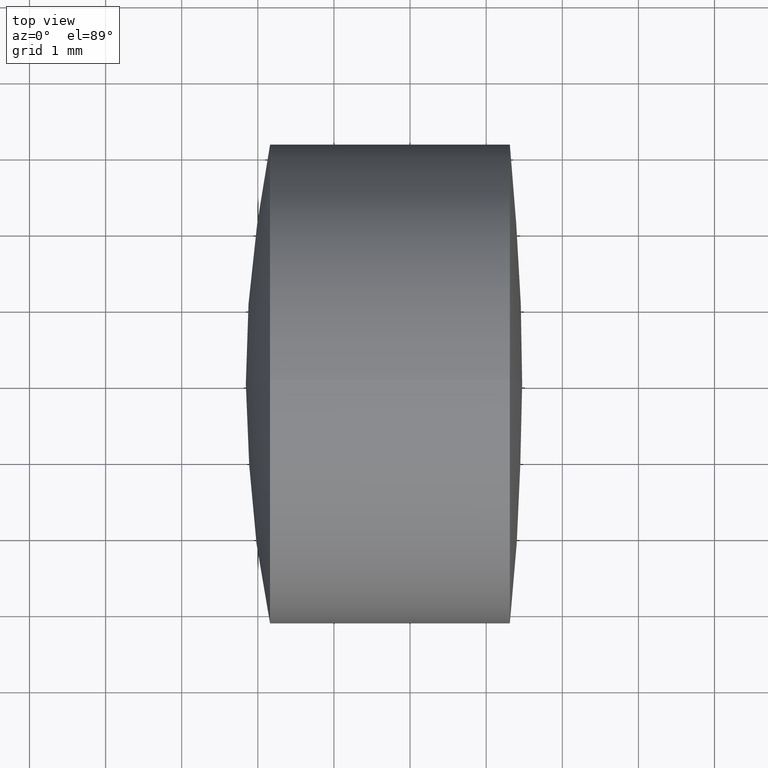
[diagram: clean part render]
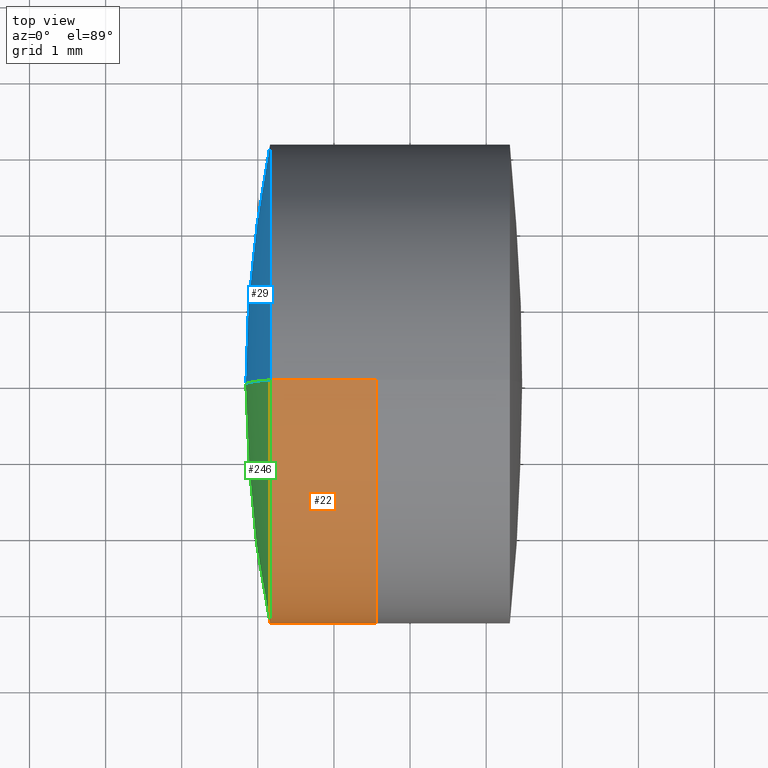
[diagram: same view with three faces highlighted in distinct colors, each labeled with its STEP entity id]
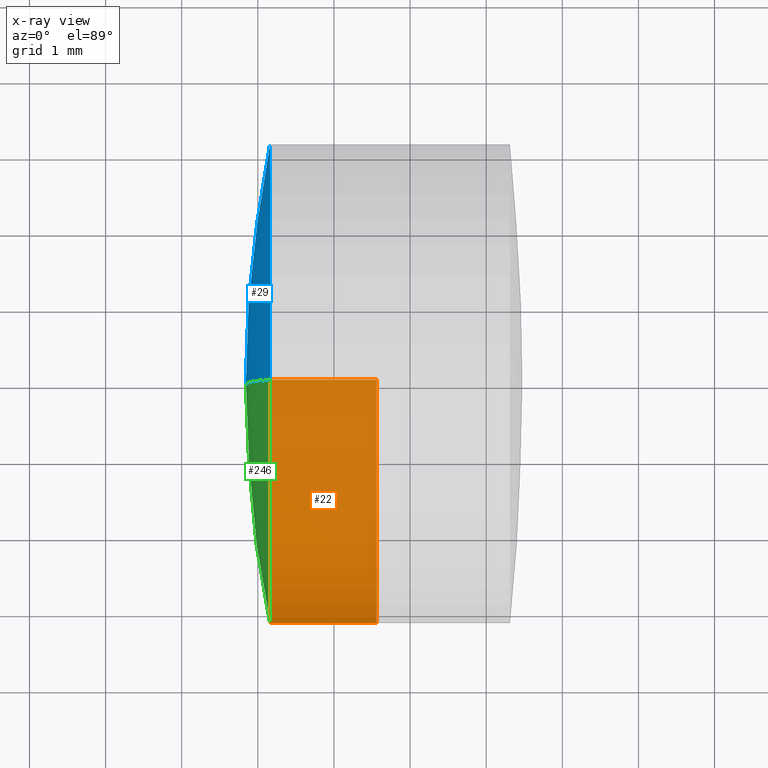
[diagram: x-ray of the same camera — body ghosted, the three highlighted faces saturated]
A machine part, top view with three faces highlighted in distinct colors.
The next image is the same camera in x-ray (body ghosted, the three faces saturated) — at least one of them is partly hidden behind the body in this view.
Their STEP definitions:

[orange] entity #22 — the highlighted cylindrical surface (partial cylindrical patch) has radius 3.15 mm, axis along (-1, -0, -0).
#8 = DIRECTION ( 'NONE',  ( -1.000000000000000000, -0.0000000000000000000, -0.0000000000000000000 ) ) ;
#12 = CARTESIAN_POINT ( 'NONE',  ( -0.8160621761658039000, 0.0000000000000000000, 0.0000000000000000000 ) ) ;
#22 = ADVANCED_FACE ( 'NONE', ( #292 ), #278, .T. ) ;
#48 = CIRCLE ( 'NONE', #173, 3.149999999999999900 ) ;
#51 = EDGE_LOOP ( 'NONE', ( #235, #281, #259, #336 ) ) ;
#60 = AXIS2_PLACEMENT_3D ( 'NONE', #12, #151, #101 ) ;
#70 = DIRECTION ( 'NONE',  ( 0.0000000000000000000, 0.0000000000000000000, 1.000000000000000000 ) ) ;
#76 = EDGE_CURVE ( 'NONE', #171, #195, #83, .T. ) ;
#83 = LINE ( 'NONE', #263, #179 ) ;
#93 = CIRCLE ( 'NONE', #188, 3.149999999999999900 ) ;
#99 = CARTESIAN_POINT ( 'NONE',  ( 8.563134654860508700, 0.0000000000000000000, 0.0000000000000000000 ) ) ;
#101 = DIRECTION ( 'NONE',  ( 0.0000000000000000000, 0.0000000000000000000, 1.000000000000000000 ) ) ;
#109 = CARTESIAN_POINT ( 'NONE',  ( 7.160622845459306200, -3.857637417314162200E-016, 3.149999999999999500 ) ) ;
#123 = VECTOR ( 'NONE', #129, 1000.000000000000000 ) ;
#125 = LINE ( 'NONE', #258, #123 ) ;
#128 = DIRECTION ( 'NONE',  ( -1.000000000000000000, -0.0000000000000000000, -0.0000000000000000000 ) ) ;
#129 = DIRECTION ( 'NONE',  ( -1.000000000000000000, -0.0000000000000000000, -0.0000000000000000000 ) ) ;
#132 = EDGE_CURVE ( 'NONE', #200, #267, #125, .T. ) ;
#151 = DIRECTION ( 'NONE',  ( -1.000000000000000000, -0.0000000000000000000, -0.0000000000000000000 ) ) ;
#171 = VERTEX_POINT ( 'NONE', #199 ) ;
#173 = AXIS2_PLACEMENT_3D ( 'NONE', #338, #322, #70 ) ;
#179 = VECTOR ( 'NONE', #8, 1000.000000000000000 ) ;
#188 = AXIS2_PLACEMENT_3D ( 'NONE', #99, #128, #312 ) ;
#195 = VERTEX_POINT ( 'NONE', #109 ) ;
#199 = CARTESIAN_POINT ( 'NONE',  ( 8.563134654860508700, 0.0000000000000000000, 3.149999999999999900 ) ) ;
#200 = VERTEX_POINT ( 'NONE', #257 ) ;
#235 = ORIENTED_EDGE ( 'NONE', *, *, #132, .F. ) ;
#257 = CARTESIAN_POINT ( 'NONE',  ( 8.563134654860508700, 3.857637417314162700E-016, -3.149999999999999900 ) ) ;
#258 = CARTESIAN_POINT ( 'NONE',  ( -0.8160621761658039000, 3.857637417314162700E-016, -3.149999999999999900 ) ) ;
#259 = ORIENTED_EDGE ( 'NONE', *, *, #76, .T. ) ;
#263 = CARTESIAN_POINT ( 'NONE',  ( -0.8160621761658039000, 0.0000000000000000000, 3.149999999999999900 ) ) ;
#267 = VERTEX_POINT ( 'NONE', #317 ) ;
#278 = CYLINDRICAL_SURFACE ( 'NONE', #60, 3.149999999999999900 ) ;
#281 = ORIENTED_EDGE ( 'NONE', *, *, #341, .T. ) ;
#292 = FACE_OUTER_BOUND ( 'NONE', #51, .T. ) ;
#312 = DIRECTION ( 'NONE',  ( 0.0000000000000000000, 0.0000000000000000000, 1.000000000000000000 ) ) ;
#317 = CARTESIAN_POINT ( 'NONE',  ( 7.160622845459306200, 0.0000000000000000000, -3.149999999999999500 ) ) ;
#318 = EDGE_CURVE ( 'NONE', #267, #195, #48, .T. ) ;
#322 = DIRECTION ( 'NONE',  ( -1.000000000000000000, -0.0000000000000000000, -0.0000000000000000000 ) ) ;
#336 = ORIENTED_EDGE ( 'NONE', *, *, #318, .F. ) ;
#338 = CARTESIAN_POINT ( 'NONE',  ( 7.160622845459305300, 0.0000000000000000000, 0.0000000000000000000 ) ) ;
#341 = EDGE_CURVE ( 'NONE', #200, #171, #93, .T. ) ;

[blue] entity #29 — the highlighted spherical surface has radius 15.759 mm.
#21 = DIRECTION ( 'NONE',  ( 0.0000000000000000000, 1.000000000000000000, -0.0000000000000000000 ) ) ;
#29 = ADVANCED_FACE ( 'NONE', ( #206 ), #49, .T. ) ;
#30 = ORIENTED_EDGE ( 'NONE', *, *, #342, .T. ) ;
#44 = EDGE_CURVE ( 'NONE', #195, #117, #222, .T. ) ;
#45 = ORIENTED_EDGE ( 'NONE', *, *, #50, .T. ) ;
#49 = SPHERICAL_SURFACE ( 'NONE', #208, 15.75900000000000200 ) ;
#50 = EDGE_CURVE ( 'NONE', #195, #267, #55, .T. ) ;
#55 = CIRCLE ( 'NONE', #68, 3.149999999999999900 ) ;
#68 = AXIS2_PLACEMENT_3D ( 'NONE', #327, #196, #230 ) ;
#74 = AXIS2_PLACEMENT_3D ( 'NONE', #279, #280, #256 ) ;
#82 = ORIENTED_EDGE ( 'NONE', *, *, #44, .F. ) ;
#90 = CARTESIAN_POINT ( 'NONE',  ( 6.842593702241595500, 0.0000000000000000000, -9.328835461776508400E-016 ) ) ;
#109 = CARTESIAN_POINT ( 'NONE',  ( 7.160622845459306200, -3.857637417314162200E-016, 3.149999999999999500 ) ) ;
#117 = VERTEX_POINT ( 'NONE', #90 ) ;
#185 = AXIS2_PLACEMENT_3D ( 'NONE', #314, #21, #264 ) ;
#195 = VERTEX_POINT ( 'NONE', #109 ) ;
#196 = DIRECTION ( 'NONE',  ( -1.000000000000000000, -0.0000000000000000000, -0.0000000000000000000 ) ) ;
#206 = FACE_OUTER_BOUND ( 'NONE', #221, .T. ) ;
#208 = AXIS2_PLACEMENT_3D ( 'NONE', #286, #276, #332 ) ;
#221 = EDGE_LOOP ( 'NONE', ( #82, #45, #30 ) ) ;
#222 = CIRCLE ( 'NONE', #74, 15.75900000000000200 ) ;
#230 = DIRECTION ( 'NONE',  ( 0.0000000000000000000, 0.0000000000000000000, 1.000000000000000000 ) ) ;
#256 = DIRECTION ( 'NONE',  ( 0.0000000000000000000, 1.224646799147353200E-016, -1.000000000000000000 ) ) ;
#260 = CIRCLE ( 'NONE', #185, 15.75900000000000200 ) ;
#264 = DIRECTION ( 'NONE',  ( 0.0000000000000000000, 0.0000000000000000000, 1.000000000000000000 ) ) ;
#267 = VERTEX_POINT ( 'NONE', #317 ) ;
#276 = DIRECTION ( 'NONE',  ( -0.0000000000000000000, -1.000000000000000000, -0.0000000000000000000 ) ) ;
#279 = CARTESIAN_POINT ( 'NONE',  ( 22.60159370224159800, 0.0000000000000000000, 3.207689921050636000E-017 ) ) ;
#280 = DIRECTION ( 'NONE',  ( 0.0000000000000000000, -1.000000000000000000, -1.224646799147353200E-016 ) ) ;
#286 = CARTESIAN_POINT ( 'NONE',  ( 22.60159370224159800, 0.0000000000000000000, 3.207689921050636000E-017 ) ) ;
#314 = CARTESIAN_POINT ( 'NONE',  ( 22.60159370224159800, 0.0000000000000000000, 3.207689921050636000E-017 ) ) ;
#317 = CARTESIAN_POINT ( 'NONE',  ( 7.160622845459306200, 0.0000000000000000000, -3.149999999999999500 ) ) ;
#327 = CARTESIAN_POINT ( 'NONE',  ( 7.160622845459305300, 0.0000000000000000000, 0.0000000000000000000 ) ) ;
#332 = DIRECTION ( 'NONE',  ( 0.0000000000000000000, 0.0000000000000000000, -1.000000000000000000 ) ) ;
#342 = EDGE_CURVE ( 'NONE', #267, #117, #260, .T. ) ;

[green] entity #246 — the highlighted spherical surface has radius 15.759 mm.
#21 = DIRECTION ( 'NONE',  ( 0.0000000000000000000, 1.000000000000000000, -0.0000000000000000000 ) ) ;
#40 = FACE_OUTER_BOUND ( 'NONE', #248, .T. ) ;
#44 = EDGE_CURVE ( 'NONE', #195, #117, #222, .T. ) ;
#48 = CIRCLE ( 'NONE', #173, 3.149999999999999900 ) ;
#57 = ORIENTED_EDGE ( 'NONE', *, *, #342, .F. ) ;
#70 = DIRECTION ( 'NONE',  ( 0.0000000000000000000, 0.0000000000000000000, 1.000000000000000000 ) ) ;
#74 = AXIS2_PLACEMENT_3D ( 'NONE', #279, #280, #256 ) ;
#90 = CARTESIAN_POINT ( 'NONE',  ( 6.842593702241595500, 0.0000000000000000000, -9.328835461776508400E-016 ) ) ;
#109 = CARTESIAN_POINT ( 'NONE',  ( 7.160622845459306200, -3.857637417314162200E-016, 3.149999999999999500 ) ) ;
#117 = VERTEX_POINT ( 'NONE', #90 ) ;
#131 = ORIENTED_EDGE ( 'NONE', *, *, #44, .T. ) ;
#168 = DIRECTION ( 'NONE',  ( 0.0000000000000000000, 0.0000000000000000000, -1.000000000000000000 ) ) ;
#173 = AXIS2_PLACEMENT_3D ( 'NONE', #338, #322, #70 ) ;
#185 = AXIS2_PLACEMENT_3D ( 'NONE', #314, #21, #264 ) ;
#190 = SPHERICAL_SURFACE ( 'NONE', #329, 15.75900000000000200 ) ;
#195 = VERTEX_POINT ( 'NONE', #109 ) ;
#222 = CIRCLE ( 'NONE', #74, 15.75900000000000200 ) ;
#246 = ADVANCED_FACE ( 'NONE', ( #40 ), #190, .T. ) ;
#248 = EDGE_LOOP ( 'NONE', ( #309, #131, #57 ) ) ;
#256 = DIRECTION ( 'NONE',  ( 0.0000000000000000000, 1.224646799147353200E-016, -1.000000000000000000 ) ) ;
#260 = CIRCLE ( 'NONE', #185, 15.75900000000000200 ) ;
#264 = DIRECTION ( 'NONE',  ( 0.0000000000000000000, 0.0000000000000000000, 1.000000000000000000 ) ) ;
#266 = DIRECTION ( 'NONE',  ( -0.0000000000000000000, -1.000000000000000000, -0.0000000000000000000 ) ) ;
#267 = VERTEX_POINT ( 'NONE', #317 ) ;
#279 = CARTESIAN_POINT ( 'NONE',  ( 22.60159370224159800, 0.0000000000000000000, 3.207689921050636000E-017 ) ) ;
#280 = DIRECTION ( 'NONE',  ( 0.0000000000000000000, -1.000000000000000000, -1.224646799147353200E-016 ) ) ;
#309 = ORIENTED_EDGE ( 'NONE', *, *, #318, .T. ) ;
#311 = CARTESIAN_POINT ( 'NONE',  ( 22.60159370224159800, 0.0000000000000000000, 3.207689921050636000E-017 ) ) ;
#314 = CARTESIAN_POINT ( 'NONE',  ( 22.60159370224159800, 0.0000000000000000000, 3.207689921050636000E-017 ) ) ;
#317 = CARTESIAN_POINT ( 'NONE',  ( 7.160622845459306200, 0.0000000000000000000, -3.149999999999999500 ) ) ;
#318 = EDGE_CURVE ( 'NONE', #267, #195, #48, .T. ) ;
#322 = DIRECTION ( 'NONE',  ( -1.000000000000000000, -0.0000000000000000000, -0.0000000000000000000 ) ) ;
#329 = AXIS2_PLACEMENT_3D ( 'NONE', #311, #266, #168 ) ;
#338 = CARTESIAN_POINT ( 'NONE',  ( 7.160622845459305300, 0.0000000000000000000, 0.0000000000000000000 ) ) ;
#342 = EDGE_CURVE ( 'NONE', #267, #117, #260, .T. ) ;